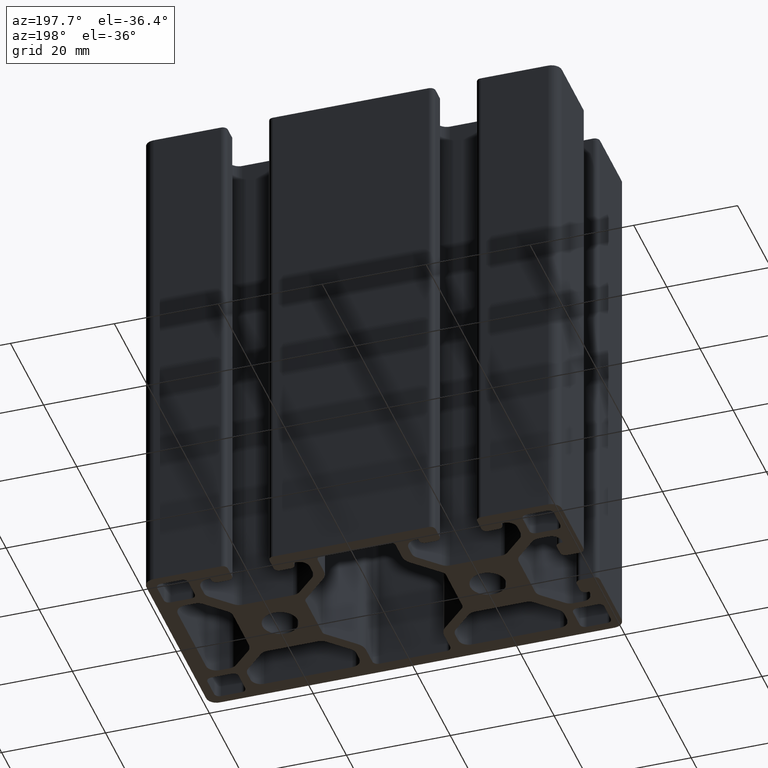
[diagram: clean part render]
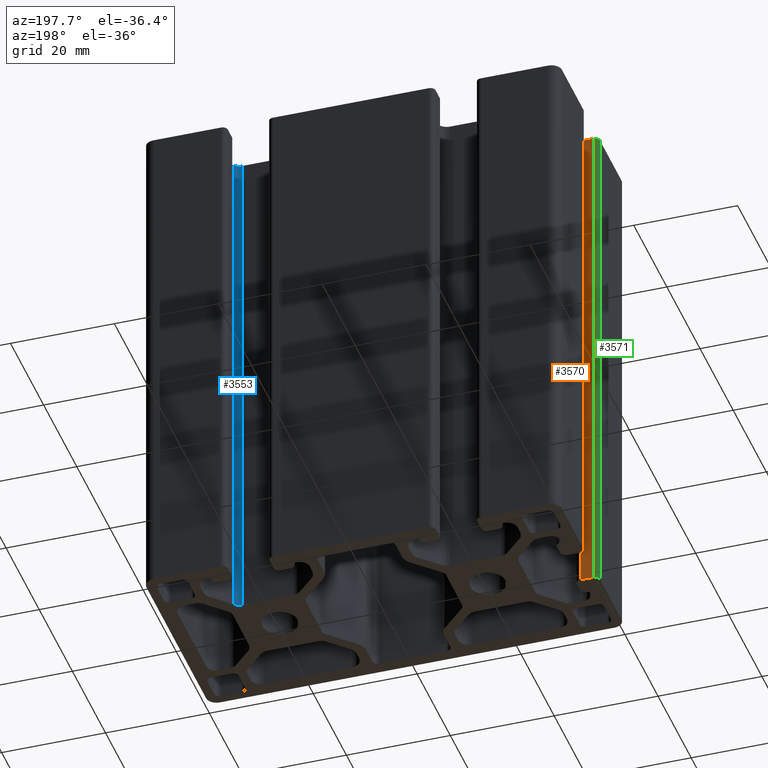
[diagram: same view with three faces highlighted in distinct colors, each labeled with its STEP entity id]
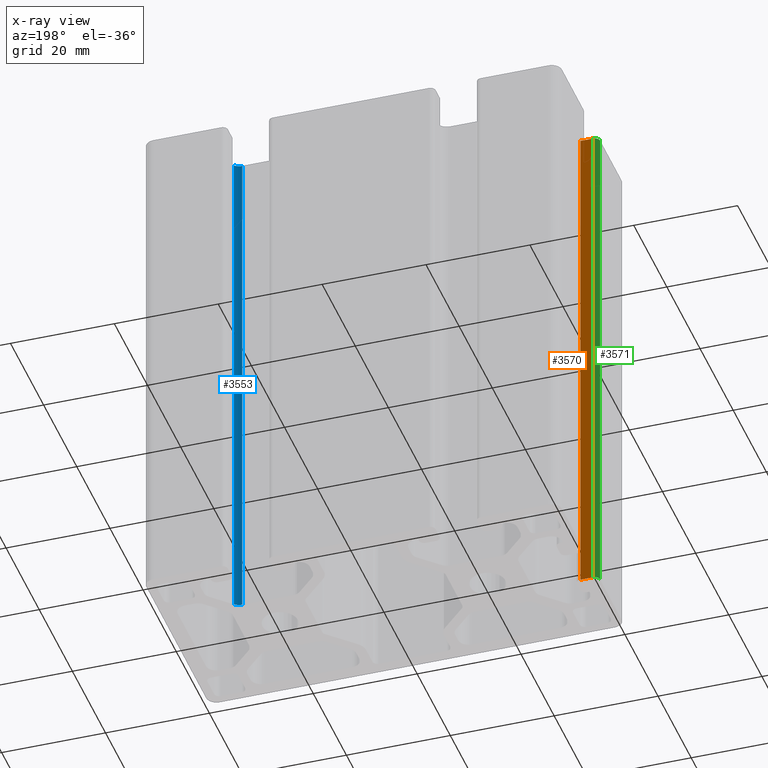
[diagram: x-ray of the same camera — body ghosted, the three highlighted faces saturated]
A machine part, auxiliary view with three faces highlighted in distinct colors.
The next image is the same camera in x-ray (body ghosted, the three faces saturated) — at least one of them is partly hidden behind the body in this view.
Their STEP definitions:

[orange] entity #3570 — the highlighted planar face has unit normal (0, -1, 0).
#82=PLANE('',#3846);
#222=FACE_OUTER_BOUND('',#405,.T.);
#405=EDGE_LOOP('',(#2677,#2678,#2679,#2680));
#698=LINE('',#5652,#1060);
#699=LINE('',#5655,#1061);
#700=LINE('',#5657,#1062);
#701=LINE('',#5658,#1063);
#1060=VECTOR('',#4570,100.);
#1061=VECTOR('',#4573,2.5000039918977);
#1062=VECTOR('',#4574,2.5000039918977);
#1063=VECTOR('',#4575,100.);
#1600=VERTEX_POINT('',#5646);
#1602=VERTEX_POINT('',#5650);
#1603=VERTEX_POINT('',#5654);
#1604=VERTEX_POINT('',#5656);
#2050=EDGE_CURVE('',#1602,#1600,#698,.T.);
#2051=EDGE_CURVE('',#1600,#1603,#699,.T.);
#2052=EDGE_CURVE('',#1604,#1602,#700,.T.);
#2053=EDGE_CURVE('',#1604,#1603,#701,.T.);
#2677=ORIENTED_EDGE('',*,*,#2051,.F.);
#2678=ORIENTED_EDGE('',*,*,#2050,.F.);
#2679=ORIENTED_EDGE('',*,*,#2052,.F.);
#2680=ORIENTED_EDGE('',*,*,#2053,.T.);
#3570=ADVANCED_FACE('',(#222),#82,.F.);
#3846=AXIS2_PLACEMENT_3D('',#5653,#4571,#4572);
#4570=DIRECTION('',(0.,0.,1.));
#4571=DIRECTION('center_axis',(1.77635400299087E-15,-1.,0.));
#4572=DIRECTION('ref_axis',(1.,1.77635683940025E-15,0.));
#4573=DIRECTION('',(-1.,-1.77635400299087E-15,0.));
#4574=DIRECTION('',(1.,1.77635400299087E-15,0.));
#4575=DIRECTION('',(0.,0.,1.));
#5646=CARTESIAN_POINT('',(-36.4999980040512,-4.,100.));
#5650=CARTESIAN_POINT('',(-36.4999980040512,-4.,0.));
#5652=CARTESIAN_POINT('',(-36.4999980040512,-4.,0.));
#5653=CARTESIAN_POINT('Origin',(-39.0000019959488,-4.,0.));
#5654=CARTESIAN_POINT('',(-39.0000019959488,-4.,100.));
#5655=CARTESIAN_POINT('',(-19.5000009979744,-3.99999999999997,100.));
#5656=CARTESIAN_POINT('',(-39.0000019959488,-4.,0.));
#5657=CARTESIAN_POINT('',(-19.5000009979744,-3.99999999999997,0.));
#5658=CARTESIAN_POINT('',(-39.0000019959488,-4.,0.));

[blue] entity #3553 — the highlighted cylindrical surface (edge-blend (fillet) strip) has radius 2 mm, axis along (0, 0, 1).
#205=FACE_OUTER_BOUND('',#388,.T.);
#388=EDGE_LOOP('',(#2609,#2610,#2611,#2612));
#663=LINE('',#5546,#1025);
#665=LINE('',#5552,#1027);
#1025=VECTOR('',#4465,100.);
#1027=VECTOR('',#4471,100.);
#1315=CIRCLE('',#3812,1.99999999999999);
#1316=CIRCLE('',#3813,1.99999999999999);
#1565=VERTEX_POINT('',#5543);
#1566=VERTEX_POINT('',#5545);
#1567=VERTEX_POINT('',#5549);
#1568=VERTEX_POINT('',#5551);
#1997=EDGE_CURVE('',#1566,#1565,#663,.T.);
#1999=EDGE_CURVE('',#1567,#1565,#1315,.T.);
#2000=EDGE_CURVE('',#1568,#1567,#665,.T.);
#2001=EDGE_CURVE('',#1566,#1568,#1316,.T.);
#2609=ORIENTED_EDGE('',*,*,#1999,.F.);
#2610=ORIENTED_EDGE('',*,*,#2000,.F.);
#2611=ORIENTED_EDGE('',*,*,#2001,.F.);
#2612=ORIENTED_EDGE('',*,*,#1997,.T.);
#3428=CYLINDRICAL_SURFACE('',#3811,1.99999999999999);
#3553=ADVANCED_FACE('',(#205),#3428,.F.);
#3811=AXIS2_PLACEMENT_3D('',#5548,#4467,#4468);
#3812=AXIS2_PLACEMENT_3D('',#5550,#4469,#4470);
#3813=AXIS2_PLACEMENT_3D('',#5553,#4472,#4473);
#4465=DIRECTION('',(0.,0.,1.));
#4467=DIRECTION('center_axis',(0.,0.,1.));
#4468=DIRECTION('ref_axis',(-4.44089209850064E-15,-1.,0.));
#4469=DIRECTION('center_axis',(0.,0.,-1.));
#4470=DIRECTION('ref_axis',(-4.44089209850064E-15,-1.,0.));
#4471=DIRECTION('',(0.,0.,1.));
#4472=DIRECTION('center_axis',(0.,0.,1.));
#4473=DIRECTION('ref_axis',(-4.44089209850064E-15,-1.,0.));
#5543=CARTESIAN_POINT('',(24.9038059222874,7.49999999999998,100.));
#5545=CARTESIAN_POINT('',(24.9038059222874,7.49999999999998,0.));
#5546=CARTESIAN_POINT('',(24.9038059222874,7.49999999999998,0.));
#5548=CARTESIAN_POINT('Origin',(24.9038059222875,9.49999999999998,0.));
#5549=CARTESIAN_POINT('',(26.3180194846605,8.08578643762688,100.));
#5550=CARTESIAN_POINT('Origin',(24.9038059222875,9.49999999999998,100.));
#5551=CARTESIAN_POINT('',(26.3180194846605,8.08578643762688,0.));
#5552=CARTESIAN_POINT('',(26.3180194846605,8.08578643762688,0.));
#5553=CARTESIAN_POINT('Origin',(24.9038059222875,9.49999999999998,0.));

[green] entity #3571 — the highlighted cylindrical surface (edge-blend (fillet) strip) has radius 1 mm, axis along (0, 0, 1).
#223=FACE_OUTER_BOUND('',#406,.T.);
#406=EDGE_LOOP('',(#2681,#2682,#2683,#2684));
#701=LINE('',#5658,#1063);
#702=LINE('',#5664,#1064);
#1063=VECTOR('',#4575,100.);
#1064=VECTOR('',#4582,100.);
#1333=CIRCLE('',#3848,0.99999800405115);
#1334=CIRCLE('',#3849,0.99999800405115);
#1603=VERTEX_POINT('',#5654);
#1604=VERTEX_POINT('',#5656);
#1605=VERTEX_POINT('',#5660);
#1606=VERTEX_POINT('',#5662);
#2053=EDGE_CURVE('',#1604,#1603,#701,.T.);
#2054=EDGE_CURVE('',#1603,#1605,#1333,.T.);
#2055=EDGE_CURVE('',#1606,#1604,#1334,.T.);
#2056=EDGE_CURVE('',#1605,#1606,#702,.T.);
#2681=ORIENTED_EDGE('',*,*,#2054,.F.);
#2682=ORIENTED_EDGE('',*,*,#2053,.F.);
#2683=ORIENTED_EDGE('',*,*,#2055,.F.);
#2684=ORIENTED_EDGE('',*,*,#2056,.F.);
#3437=CYLINDRICAL_SURFACE('',#3847,0.99999800405115);
#3571=ADVANCED_FACE('',(#223),#3437,.T.);
#3847=AXIS2_PLACEMENT_3D('',#5659,#4576,#4577);
#3848=AXIS2_PLACEMENT_3D('',#5661,#4578,#4579);
#3849=AXIS2_PLACEMENT_3D('',#5663,#4580,#4581);
#4575=DIRECTION('',(0.,0.,1.));
#4576=DIRECTION('center_axis',(0.,0.,1.));
#4577=DIRECTION('ref_axis',(0.,-1.,0.));
#4578=DIRECTION('center_axis',(0.,0.,1.));
#4579=DIRECTION('ref_axis',(0.,-1.,0.));
#4580=DIRECTION('center_axis',(0.,0.,-1.));
#4581=DIRECTION('ref_axis',(0.,-1.,0.));
#4582=DIRECTION('',(0.,0.,-1.));
#5654=CARTESIAN_POINT('',(-39.0000019959488,-4.,100.));
#5656=CARTESIAN_POINT('',(-39.0000019959488,-4.,0.));
#5658=CARTESIAN_POINT('',(-39.0000019959488,-4.,0.));
#5659=CARTESIAN_POINT('Origin',(-39.0000019959488,-4.99999800405115,0.));
#5660=CARTESIAN_POINT('',(-40.,-4.99999800405114,100.));
#5661=CARTESIAN_POINT('Origin',(-39.0000019959488,-4.99999800405115,100.));
#5662=CARTESIAN_POINT('',(-40.,-4.99999800405114,0.));
#5663=CARTESIAN_POINT('Origin',(-39.0000019959488,-4.99999800405115,0.));
#5664=CARTESIAN_POINT('',(-40.,-4.99999800405115,0.));